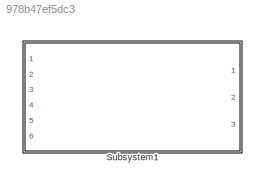
MODEL slx_978b47ef5dc3
KIND model
CONFIG AbsTol = auto
CONFIG EnableMultiTasking = off
CONFIG FixedStep = auto
CONFIG MaxStep = auto
CONFIG MinStep = auto
CONFIG RelTol = 1e-3
CONFIG SampleTimeConstraint = Unconstrained
CONFIG SolverName = VariableStepAuto
CONFIG StartTime = 0.0
CONFIG StopTime = 10.0
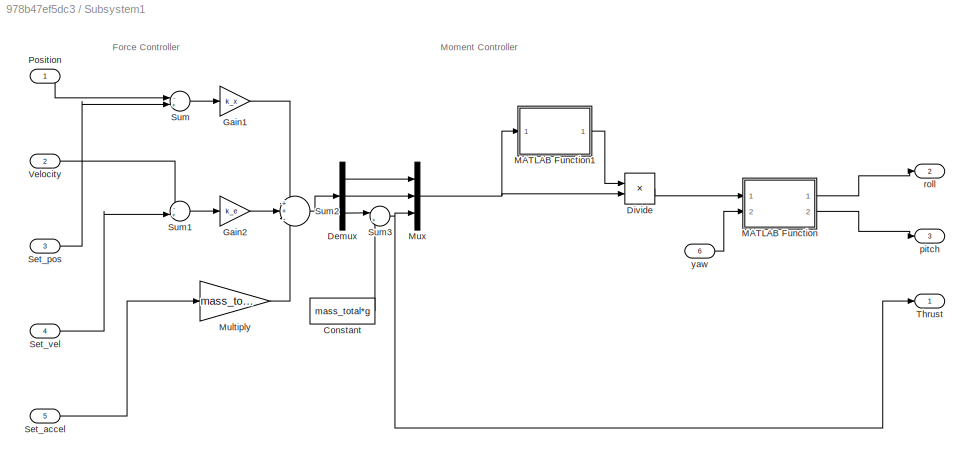
BLOCK [SubSystem] Subsystem1
  Ports = [6, 3]
  RequestExecContextInheritance = off
BLOCK [Constant] Subsystem1/Constant
  Value = mass_total*g
BLOCK [Demux] Subsystem1/Demux
  Outputs = 3
  Ports = [1, 3]
BLOCK [Product] Subsystem1/Divide
  Inputs = /*
  Ports = [2, 1]
BLOCK [Gain] Subsystem1/Gain1
  Gain = k_x
BLOCK [Gain] Subsystem1/Gain2
  Gain = k_e
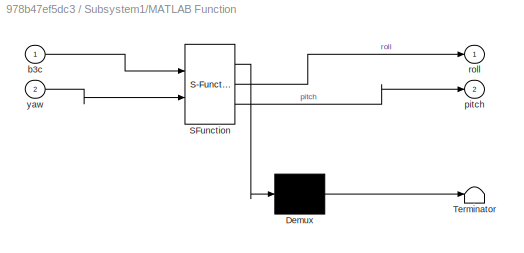
BLOCK [SubSystem] Subsystem1/MATLAB Function
  ErrorFcn = Stateflow.Translate.translate
  PermitHierarchicalResolution = ExplicitOnly
  Ports = [2, 2]
  RequestExecContextInheritance = off
  SFBlockType = MATLAB Function
  TreatAsAtomicUnit = on
BLOCK [Demux] Subsystem1/MATLAB Function/ Demux 
  Outputs = 1
  Ports = [1, 1]
BLOCK [S-Function] Subsystem1/MATLAB Function/ SFunction 
  EnableBusSupport = on
  FunctionName = sf_sfun
  PortCounts = [2 3]
  Ports = [2, 3]
  SFcnIsStateOwnerBlock = off
  SFunctionDeploymentMode = off
  Tag = Stateflow S-Function 2
BLOCK [Terminator] Subsystem1/MATLAB Function/ Terminator 
BLOCK [Inport] Subsystem1/MATLAB Function/b3c
BLOCK [Outport] Subsystem1/MATLAB Function/pitch
  Port = 2
BLOCK [Outport] Subsystem1/MATLAB Function/roll
BLOCK [Inport] Subsystem1/MATLAB Function/yaw
  Port = 2
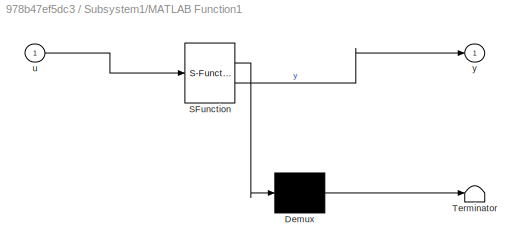
BLOCK [SubSystem] Subsystem1/MATLAB Function1
  ErrorFcn = Stateflow.Translate.translate
  PermitHierarchicalResolution = ExplicitOnly
  Ports = [1, 1]
  RequestExecContextInheritance = off
  SFBlockType = MATLAB Function
  TreatAsAtomicUnit = on
BLOCK [Demux] Subsystem1/MATLAB Function1/ Demux 
  Outputs = 1
  Ports = [1, 1]
BLOCK [S-Function] Subsystem1/MATLAB Function1/ SFunction 
  EnableBusSupport = on
  FunctionName = sf_sfun
  PortCounts = [1 2]
  Ports = [1, 2]
  SFcnIsStateOwnerBlock = off
  SFunctionDeploymentMode = off
  Tag = Stateflow S-Function 1
BLOCK [Terminator] Subsystem1/MATLAB Function1/ Terminator 
BLOCK [Inport] Subsystem1/MATLAB Function1/u
BLOCK [Outport] Subsystem1/MATLAB Function1/y
BLOCK [Gain] Subsystem1/Multiply
  Gain = mass_total
BLOCK [Mux] Subsystem1/Mux
  DisplayOption = bar
  Inputs = 3
  Ports = [3, 1]
BLOCK [Inport] Subsystem1/Position
BLOCK [Inport] Subsystem1/Set_accel
  Port = 5
BLOCK [Inport] Subsystem1/Set_pos
  Port = 3
BLOCK [Inport] Subsystem1/Set_vel
  Port = 4
BLOCK [Sum] Subsystem1/Sum
  Inputs = -+|
  Ports = [2, 1]
BLOCK [Sum] Subsystem1/Sum1
  Inputs = -+|
  Ports = [2, 1]
BLOCK [Sum] Subsystem1/Sum2
  Inputs = ++-
  Ports = [3, 1]
BLOCK [Sum] Subsystem1/Sum3
  Inputs = |++
  Ports = [2, 1]
BLOCK [Outport] Subsystem1/Thrust
BLOCK [Inport] Subsystem1/Velocity
  Port = 2
BLOCK [Outport] Subsystem1/pitch
  Port = 3
BLOCK [Outport] Subsystem1/roll
  Port = 2
BLOCK [Inport] Subsystem1/yaw
  Port = 6
ANNOTATION Subsystem1: Force Controller
ANNOTATION Subsystem1: Moment Controller
LINE Subsystem1/Constant:1 -> Subsystem1/Sum3:2
LINE Subsystem1/Demux:1 -> Subsystem1/Mux:1
LINE Subsystem1/Demux:2 -> Subsystem1/Mux:2
LINE Subsystem1/Demux:3 -> Subsystem1/Sum3:1
LINE Subsystem1/Divide:1 -> Subsystem1/MATLAB Function:1
LINE Subsystem1/Gain1:1 -> Subsystem1/Sum2:1
LINE Subsystem1/Gain2:1 -> Subsystem1/Sum2:2
LINE Subsystem1/MATLAB Function1:1 -> Subsystem1/Divide:1
LINE Subsystem1/MATLAB Function:1 -> Subsystem1/roll:1
LINE Subsystem1/MATLAB Function:2 -> Subsystem1/pitch:1
LINE Subsystem1/Multiply:1 -> Subsystem1/Sum2:3
NET Subsystem1/Mux:1 -> Subsystem1/Divide:2, Subsystem1/MATLAB Function1:1
LINE Subsystem1/Position:1 -> Subsystem1/Sum:1
LINE Subsystem1/Set_accel:1 -> Subsystem1/Multiply:1
LINE Subsystem1/Set_pos:1 -> Subsystem1/Sum:2
LINE Subsystem1/Set_vel:1 -> Subsystem1/Sum1:2
LINE Subsystem1/Sum1:1 -> Subsystem1/Gain2:1
LINE Subsystem1/Sum2:1 -> Subsystem1/Demux:1
NET Subsystem1/Sum3:1 -> Subsystem1/Mux:3, Subsystem1/Thrust:1
LINE Subsystem1/Sum:1 -> Subsystem1/Gain1:1
LINE Subsystem1/Velocity:1 -> Subsystem1/Sum1:1
LINE Subsystem1/yaw:1 -> Subsystem1/MATLAB Function:2
note: NET lines group one-source signal fan-out (src -> all destinations, sorted); 1:1 wires keep LINE
CHART Subsystem1/MATLAB Function states=1 transitions=1
  STATE_LABEL 'eML_blk_kernel()'
  STATE_LABEL "SCRIPT:\nfunction [roll, pitch] = calc(b3c, yaw)\n\nyaw_dt = yaw + pi/2;\n\nb3a = cross([cos(yaw_dt); sin(yaw_dt); 0], b3c);\nb3b = cross(b3c, b3a);\n\nangles = rotm2eul([b3a b3b b3c], 'ZYX');\n\nroll = angles(3); pitch = angles(2);\n"
CHART Subsystem1/MATLAB Function1 states=1 transitions=1
  STATE_LABEL 'eML_blk_kernel()'
  STATE_LABEL 'SCRIPT:\nfunction y = norm(u)\ny = norm(u);\n'
CHART  states=0 transitions=0
CHART  states=0 transitions=0
